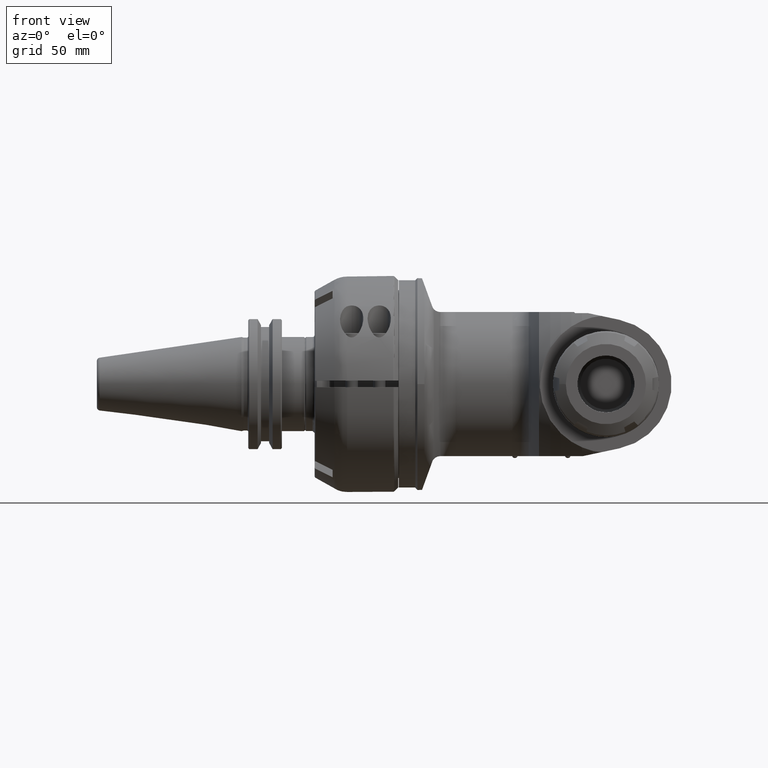
[diagram: clean part render]
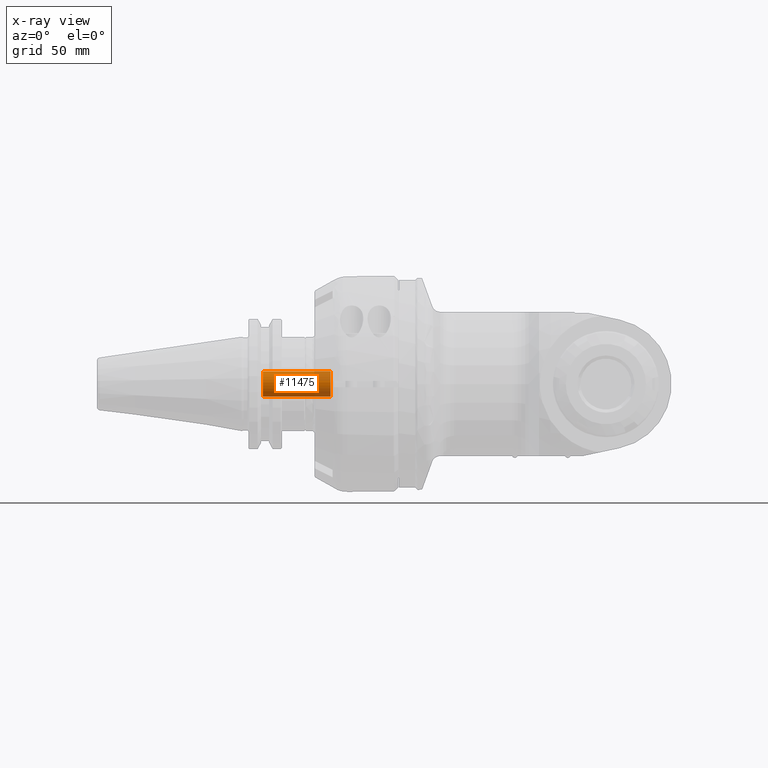
[diagram: x-ray — body ghosted, one internal face saturated and labeled with its STEP entity id]
A machine part, front view, then the same camera in x-ray: the body is ghosted and one INTERNAL B-rep face — a face not visible from any outside direction — is saturated and labeled: STEP entity #11475.
In plain terms, the highlighted cylindrical surface (bore or boss wall) has radius 6 mm, axis along (-1, 0, 0).
Its self-contained STEP definition (entity closure, byte-faithful):
#1260=LINE('',#28975,#1934);
#1934=VECTOR('',#16122,6.);
#2118=CYLINDRICAL_SURFACE('',#12820,6.);
#2910=FACE_OUTER_BOUND('',#3662,.T.);
#3662=EDGE_LOOP('',(#10461,#10462,#10463,#10464));
#4279=CIRCLE('',#12819,6.);
#4280=CIRCLE('',#12821,6.);
#5382=VERTEX_POINT('',#28970);
#5383=VERTEX_POINT('',#28973);
#7080=EDGE_CURVE('',#5382,#5382,#4279,.T.);
#7081=EDGE_CURVE('',#5383,#5383,#4280,.T.);
#7082=EDGE_CURVE('',#5383,#5382,#1260,.T.);
#10461=ORIENTED_EDGE('',*,*,#7081,.F.);
#10462=ORIENTED_EDGE('',*,*,#7082,.T.);
#10463=ORIENTED_EDGE('',*,*,#7080,.T.);
#10464=ORIENTED_EDGE('',*,*,#7082,.F.);
#11475=ADVANCED_FACE('',(#2910),#2118,.T.);
#12819=AXIS2_PLACEMENT_3D('',#28971,#16116,#16117);
#12820=AXIS2_PLACEMENT_3D('',#28972,#16118,#16119);
#12821=AXIS2_PLACEMENT_3D('',#28974,#16120,#16121);
#16116=DIRECTION('center_axis',(-1.,0.,0.));
#16117=DIRECTION('ref_axis',(0.,0.,-1.));
#16118=DIRECTION('center_axis',(-1.,0.,0.));
#16119=DIRECTION('ref_axis',(0.,0.,1.));
#16120=DIRECTION('center_axis',(-1.,0.,0.));
#16121=DIRECTION('ref_axis',(0.,0.,-1.));
#16122=DIRECTION('',(1.,0.,0.));
#28970=CARTESIAN_POINT('',(148.063097,0.,-6.));
#28971=CARTESIAN_POINT('Origin',(148.063097,0.,0.));
#28972=CARTESIAN_POINT('Origin',(158.663097,0.,0.));
#28973=CARTESIAN_POINT('',(116.063097,0.,-6.));
#28974=CARTESIAN_POINT('Origin',(116.063097,0.,0.));
#28975=CARTESIAN_POINT('',(158.663097,-7.34788079488412E-16,-6.));